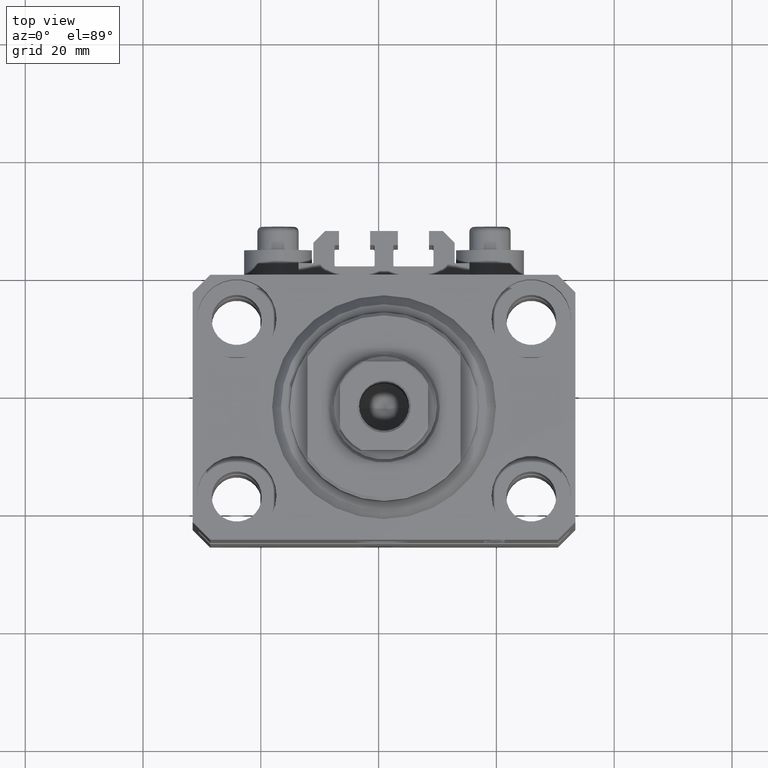
[diagram: clean part render]
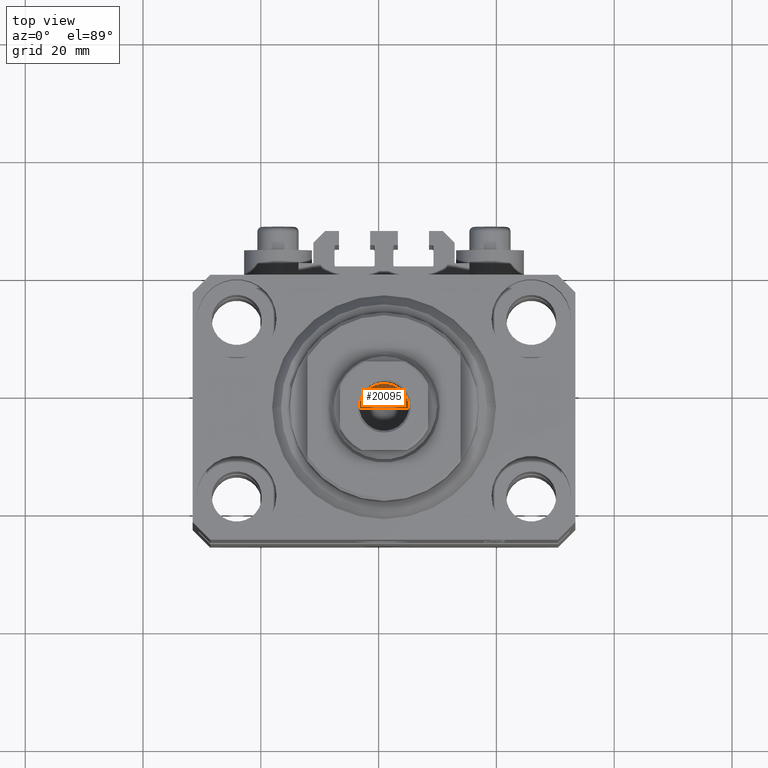
[diagram: same view with one face highlighted and labeled with its STEP entity id]
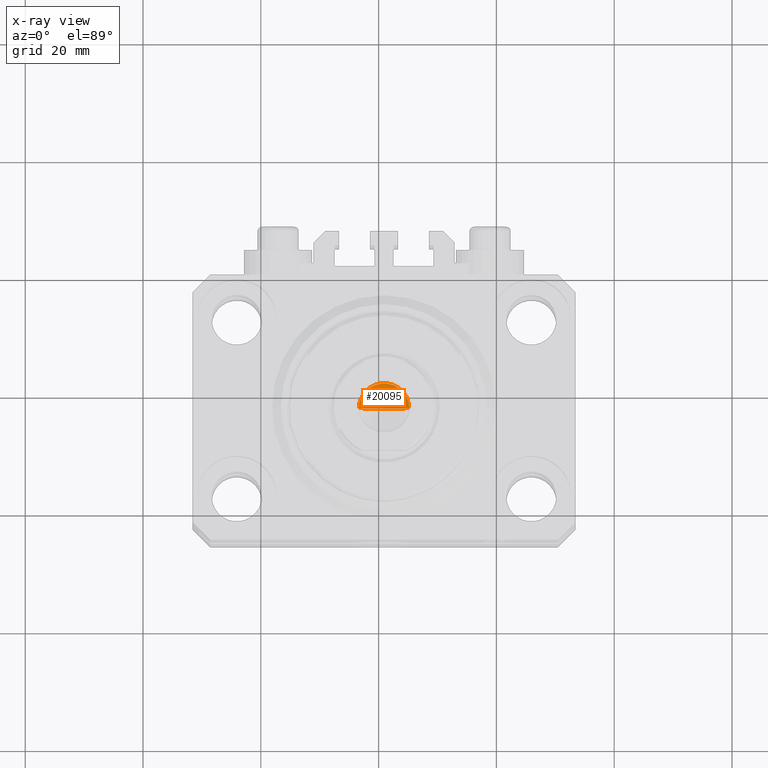
[diagram: x-ray of the same camera — body ghosted, the highlighted face saturated]
A machine part, top view. The second image highlights one B-rep face of the part: STEP entity #20095.
The next image is the same camera in x-ray: the body ghosted, the highlighted face saturated — about 0% of this face is hidden behind the body in this view.
In plain terms, the highlighted conical surface has half-angle 59 deg.
Its self-contained STEP definition (entity closure, byte-faithful):
#385 = VERTEX_POINT ( 'NONE', #14964 ) ;
#1317 = VECTOR ( 'NONE', #30205, 1000.000000000000000 ) ;
#2209 = AXIS2_PLACEMENT_3D ( 'NONE', #12965, #27690, #42411 ) ;
#4128 = DIRECTION ( 'NONE',  ( 1.000000000000000000, 0.000000000000000000, 0.000000000000000000 ) ) ;
#4716 = CIRCLE ( 'NONE', #31663, 4.249999999999994671 ) ;
#7970 = VERTEX_POINT ( 'NONE', #11729 ) ;
#8955 = CARTESIAN_POINT ( 'NONE',  ( -6.748699724488696097E-15, 0.000000000000000000, 56.54634236913287992 ) ) ;
#8997 = ORIENTED_EDGE ( 'NONE', *, *, #39281, .T. ) ;
#11729 = CARTESIAN_POINT ( 'NONE',  ( 4.249999999999994671, 0.000000000000000000, 59.10000000000000853 ) ) ;
#12269 = EDGE_CURVE ( 'NONE', #17626, #385, #36743, .T. ) ;
#12965 = CARTESIAN_POINT ( 'NONE',  ( 0.000000000000000000, 0.000000000000000000, 59.10000000000000853 ) ) ;
#14964 = CARTESIAN_POINT ( 'NONE',  ( -4.249999999999994671, 5.204748896376244783E-16, 59.10000000000000853 ) ) ;
#17626 = VERTEX_POINT ( 'NONE', #8955 ) ;
#17749 = LINE ( 'NONE', #37043, #24601 ) ;
#20095 = ADVANCED_FACE ( 'NONE', ( #46021 ), #23001, .F. ) ;
#22451 = ORIENTED_EDGE ( 'NONE', *, *, #12269, .F. ) ;
#22708 = DIRECTION ( 'NONE',  ( -0.000000000000000000, -0.000000000000000000, 1.000000000000000000 ) ) ;
#23001 = CONICAL_SURFACE ( 'NONE', #2209, 4.249999999999994671, 1.029744258676653423 ) ;
#24193 = EDGE_LOOP ( 'NONE', ( #22451, #8997, #27563 ) ) ;
#24601 = VECTOR ( 'NONE', #29321, 1000.000000000000000 ) ;
#25497 = EDGE_CURVE ( 'NONE', #7970, #385, #4716, .T. ) ;
#27563 = ORIENTED_EDGE ( 'NONE', *, *, #25497, .T. ) ;
#27690 = DIRECTION ( 'NONE',  ( -0.000000000000000000, -0.000000000000000000, 1.000000000000000000 ) ) ;
#29321 = DIRECTION ( 'NONE',  ( 0.8571673007021117785, 0.000000000000000000, 0.5150380749100550437 ) ) ;
#29694 = CARTESIAN_POINT ( 'NONE',  ( 0.000000000000000000, 0.000000000000000000, 59.10000000000000853 ) ) ;
#30205 = DIRECTION ( 'NONE',  ( -0.8571673007021117785, 1.049727191138617956E-16, 0.5150380749100550437 ) ) ;
#31663 = AXIS2_PLACEMENT_3D ( 'NONE', #29694, #22708, #4128 ) ;
#33585 = CARTESIAN_POINT ( 'NONE',  ( -4.249999999999994671, 5.204748896376244783E-16, 59.10000000000000853 ) ) ;
#36743 = LINE ( 'NONE', #33585, #1317 ) ;
#37043 = CARTESIAN_POINT ( 'NONE',  ( 4.249999999999994671, 0.000000000000000000, 59.10000000000000853 ) ) ;
#39281 = EDGE_CURVE ( 'NONE', #17626, #7970, #17749, .T. ) ;
#42411 = DIRECTION ( 'NONE',  ( 1.000000000000000000, 0.000000000000000000, 0.000000000000000000 ) ) ;
#46021 = FACE_OUTER_BOUND ( 'NONE', #24193, .T. ) ;